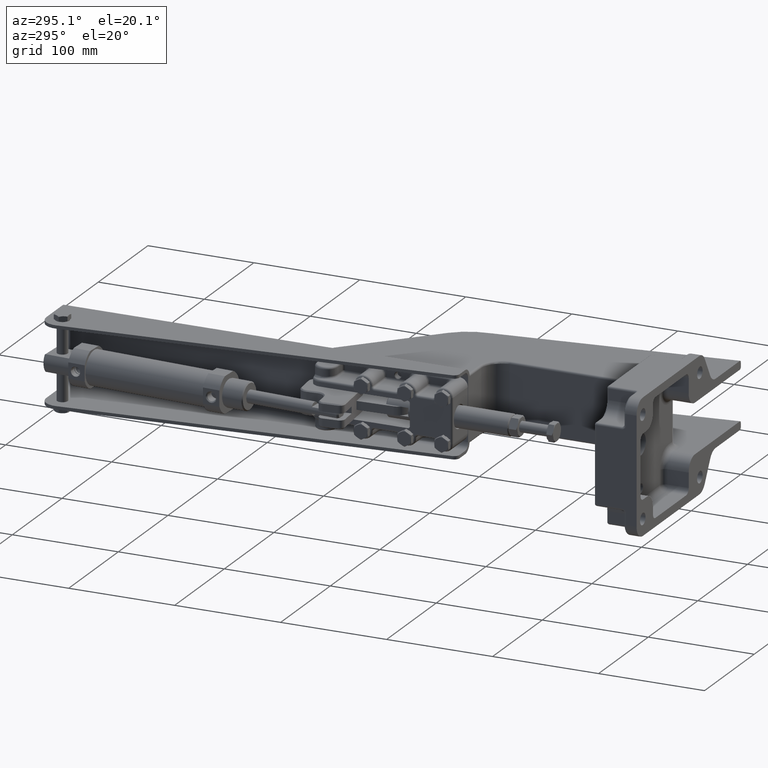
[diagram: clean part render]
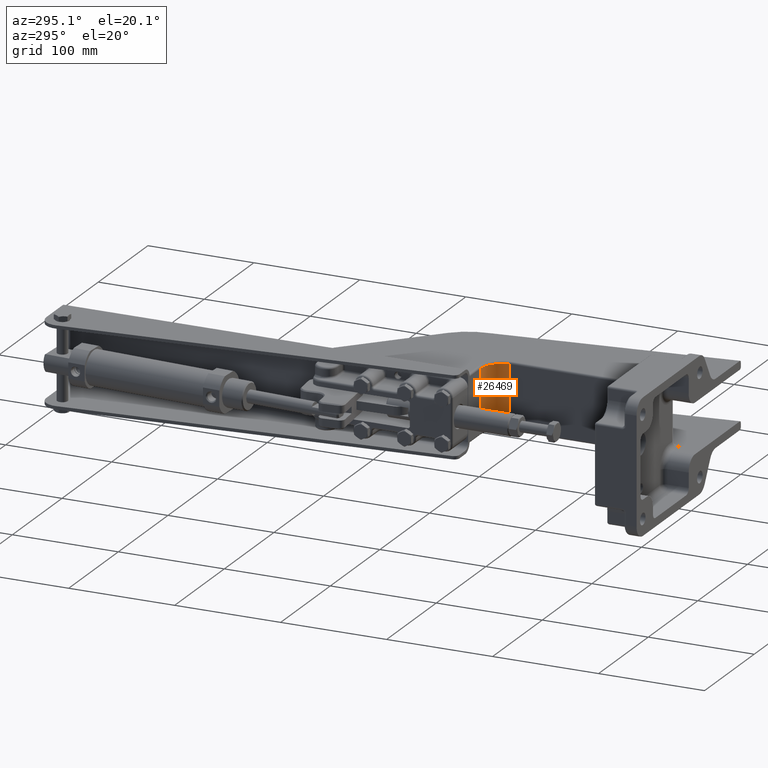
[diagram: same view with one face highlighted and labeled with its STEP entity id]
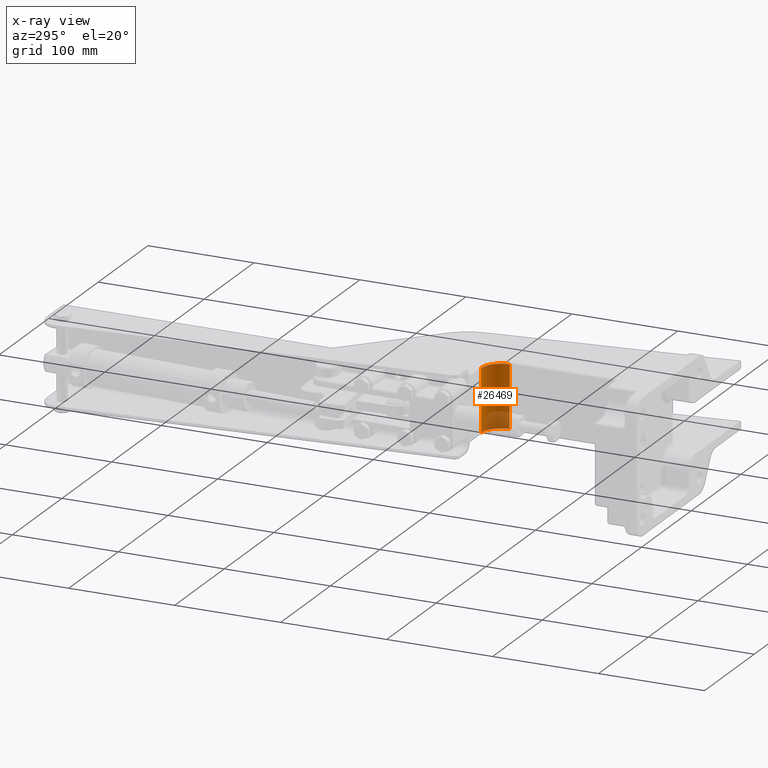
[diagram: x-ray of the same camera — body ghosted, the highlighted face saturated]
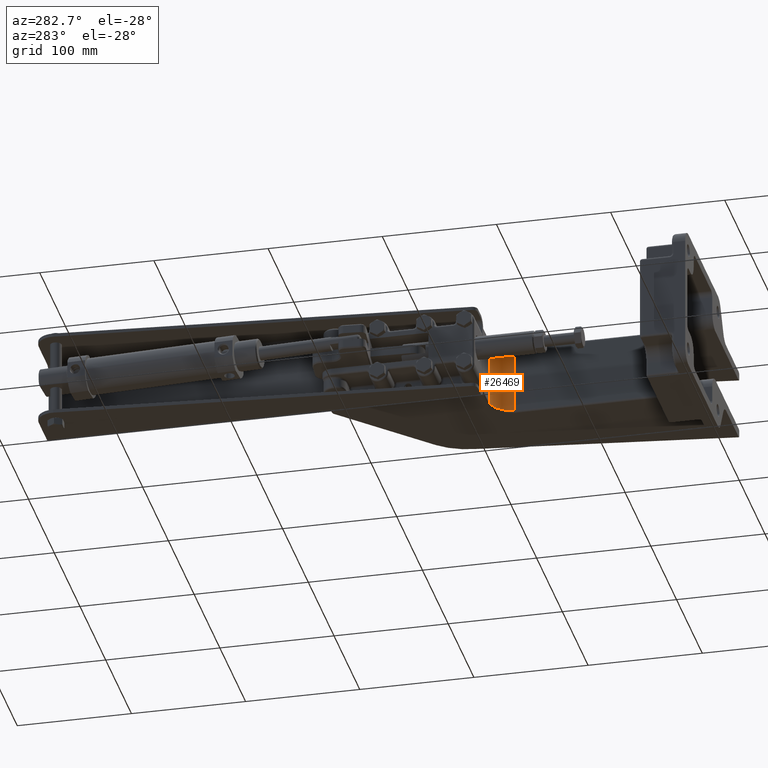
[diagram: same view with one face highlighted and labeled with its STEP entity id]
A machine part, auxiliary view. The second image highlights one B-rep face of the part: STEP entity #26469.
The next image is the same camera in x-ray: the body ghosted, the highlighted face saturated — about 22% of this face is hidden behind the body in this view.
A second angle (auxiliary view) of the same face is appended — the face is thin or edge-on in the first view.
In plain terms, the highlighted cylindrical surface (edge-blend (fillet) strip) has radius 19.1366 mm, axis along (0, 0, -1).
Its self-contained STEP definition (entity closure, byte-faithful):
#658 = ORIENTED_EDGE ( 'NONE', *, *, #39636, .T. ) ;
#1233 = EDGE_CURVE ( 'NONE', #44825, #19531, #39659, .T. ) ;
#4376 = CARTESIAN_POINT ( 'NONE',  ( -106.8289909999564600, 194.9996853245610900, -29.50000000000011000 ) ) ;
#7953 = DIRECTION ( 'NONE',  ( 0.0000000000000000000, 1.000000000000000000, 3.625981749632552500E-016 ) ) ;
#9737 = DIRECTION ( 'NONE',  ( 0.0000000000000000000, 0.0000000000000000000, -1.000000000000000000 ) ) ;
#12102 = EDGE_LOOP ( 'NONE', ( #658, #13413, #22426, #30202 ) ) ;
#12420 = DIRECTION ( 'NONE',  ( -0.0000000000000000000, -0.0000000000000000000, 1.000000000000000000 ) ) ;
#13126 = LINE ( 'NONE', #41616, #24219 ) ;
#13413 = ORIENTED_EDGE ( 'NONE', *, *, #1233, .F. ) ;
#16094 = CARTESIAN_POINT ( 'NONE',  ( -107.0248442731995100, 175.8640940088431000, 29.50000000000010700 ) ) ;
#16982 = LINE ( 'NONE', #39617, #37852 ) ;
#18794 = DIRECTION ( 'NONE',  ( -0.0000000000000000000, -0.0000000000000000000, 1.000000000000000000 ) ) ;
#19531 = VERTEX_POINT ( 'NONE', #20332 ) ;
#19889 = CIRCLE ( 'NONE', #35347, 19.13659357113536800 ) ;
#20332 = CARTESIAN_POINT ( 'NONE',  ( -87.91846500000022500, 176.9390286931314900, 29.50000000000011000 ) ) ;
#20807 = FACE_OUTER_BOUND ( 'NONE', #12102, .T. ) ;
#22426 = ORIENTED_EDGE ( 'NONE', *, *, #34109, .F. ) ;
#23353 = EDGE_CURVE ( 'NONE', #24449, #37718, #19889, .T. ) ;
#24029 = CARTESIAN_POINT ( 'NONE',  ( -107.0248442731997000, 175.8640940088433000, -29.50000000000012100 ) ) ;
#24219 = VECTOR ( 'NONE', #12420, 1000.000000000000000 ) ;
#24449 = VERTEX_POINT ( 'NONE', #46573 ) ;
#25038 = AXIS2_PLACEMENT_3D ( 'NONE', #16094, #32695, #7953 ) ;
#26469 = ADVANCED_FACE ( 'NONE', ( #20807 ), #48886, .F. ) ;
#28240 = DIRECTION ( 'NONE',  ( 0.0000000000000000000, -1.000000000000000000, -3.625981749632542200E-016 ) ) ;
#29006 = AXIS2_PLACEMENT_3D ( 'NONE', #34687, #9737, #38885 ) ;
#30202 = ORIENTED_EDGE ( 'NONE', *, *, #23353, .F. ) ;
#32695 = DIRECTION ( 'NONE',  ( 3.299934489676751100E-016, 3.455217506135741100E-016, -1.000000000000000000 ) ) ;
#34109 = EDGE_CURVE ( 'NONE', #37718, #44825, #16982, .T. ) ;
#34687 = CARTESIAN_POINT ( 'NONE',  ( -107.0248442731995100, 175.8640940088433000, 29.50000000000011400 ) ) ;
#35347 = AXIS2_PLACEMENT_3D ( 'NONE', #24029, #53250, #28240 ) ;
#37718 = VERTEX_POINT ( 'NONE', #4376 ) ;
#37852 = VECTOR ( 'NONE', #18794, 1000.000000000000000 ) ;
#37989 = CARTESIAN_POINT ( 'NONE',  ( -106.8289909999628700, 194.9996853245611700, 29.50000000000011700 ) ) ;
#38885 = DIRECTION ( 'NONE',  ( -1.000000000000000000, 0.0000000000000000000, 0.0000000000000000000 ) ) ;
#39617 = CARTESIAN_POINT ( 'NONE',  ( -106.8289909999704300, 194.9996853245610900, 0.0000000000000000000 ) ) ;
#39636 = EDGE_CURVE ( 'NONE', #24449, #19531, #13126, .T. ) ;
#39659 = CIRCLE ( 'NONE', #29006, 19.13659357113527200 ) ;
#41616 = CARTESIAN_POINT ( 'NONE',  ( -87.91846500000026800, 176.9390286931289600, 0.0000000000000000000 ) ) ;
#44825 = VERTEX_POINT ( 'NONE', #37989 ) ;
#46573 = CARTESIAN_POINT ( 'NONE',  ( -87.91846500000028200, 176.9390286931276000, -29.50000000000011000 ) ) ;
#48886 = CYLINDRICAL_SURFACE ( 'NONE', #25038, 19.13659357113531500 ) ;
#53250 = DIRECTION ( 'NONE',  ( -3.210934660368686900E-016, -3.354535057308703800E-016, 1.000000000000000000 ) ) ;